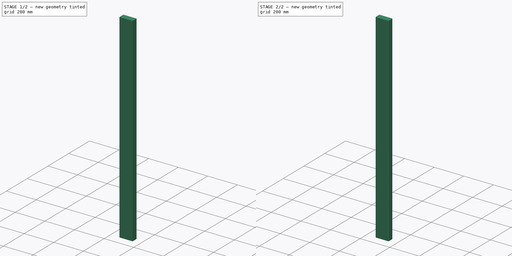
[diagram: build sequence overview — one tinted view per stage of 2, left to right]
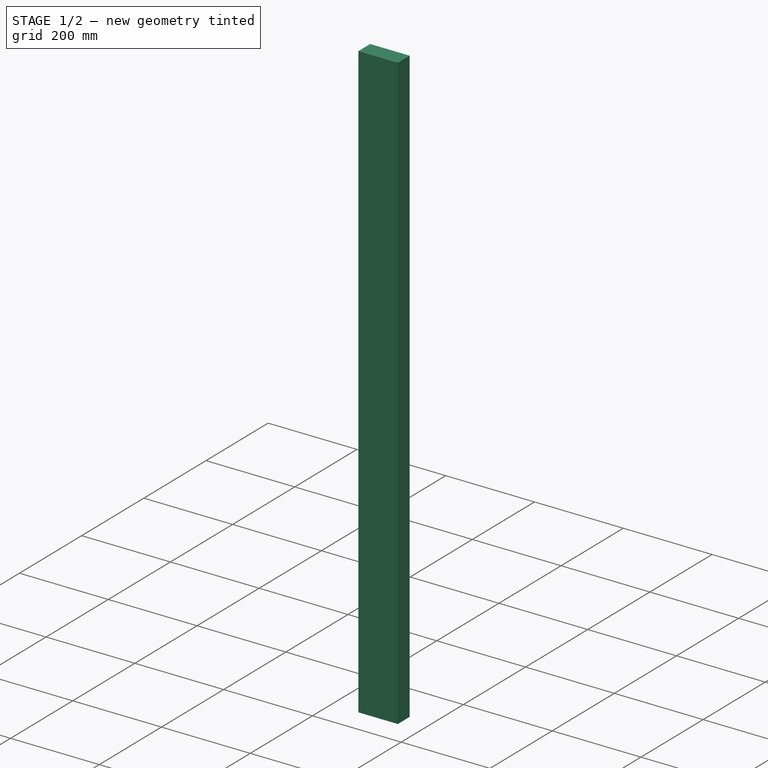
[diagram: stage 1 of 2 — iso view after this stage's code; geometry added in this stage tinted green]
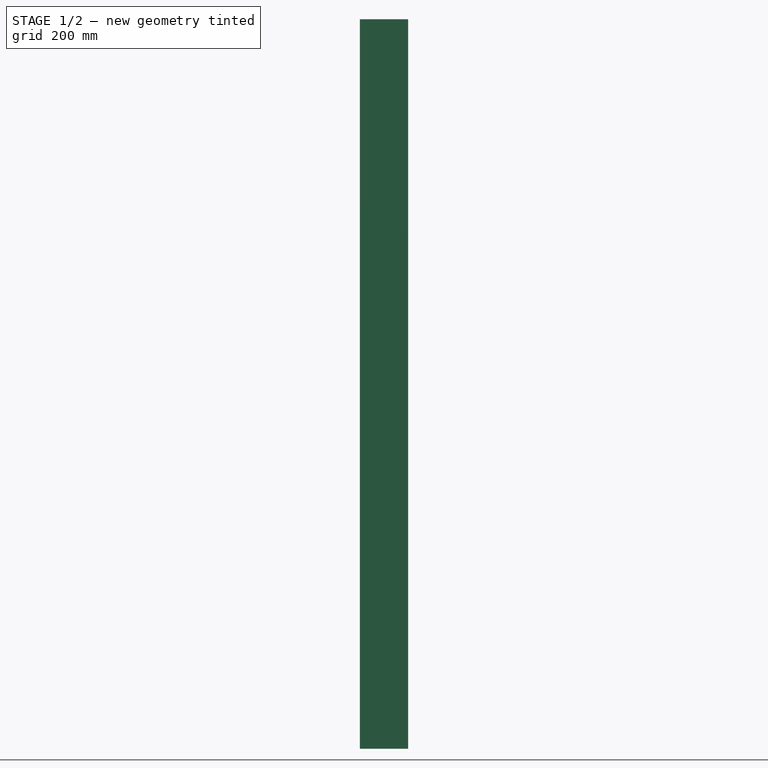
[diagram: stage 1 of 2 — front view after this stage's code; geometry added in this stage tinted green]
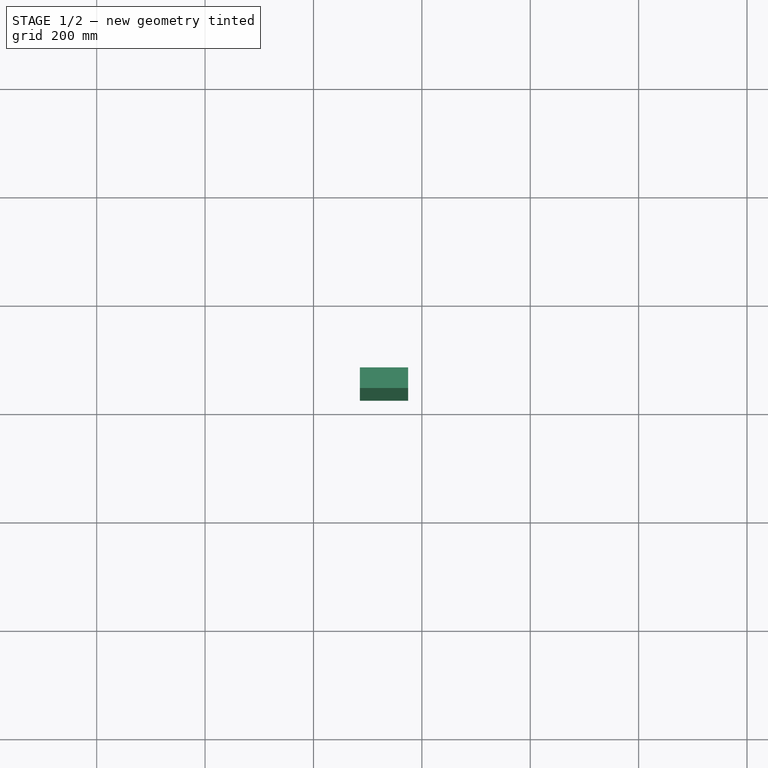
[diagram: stage 1 of 2 — top view after this stage's code; geometry added in this stage tinted green]
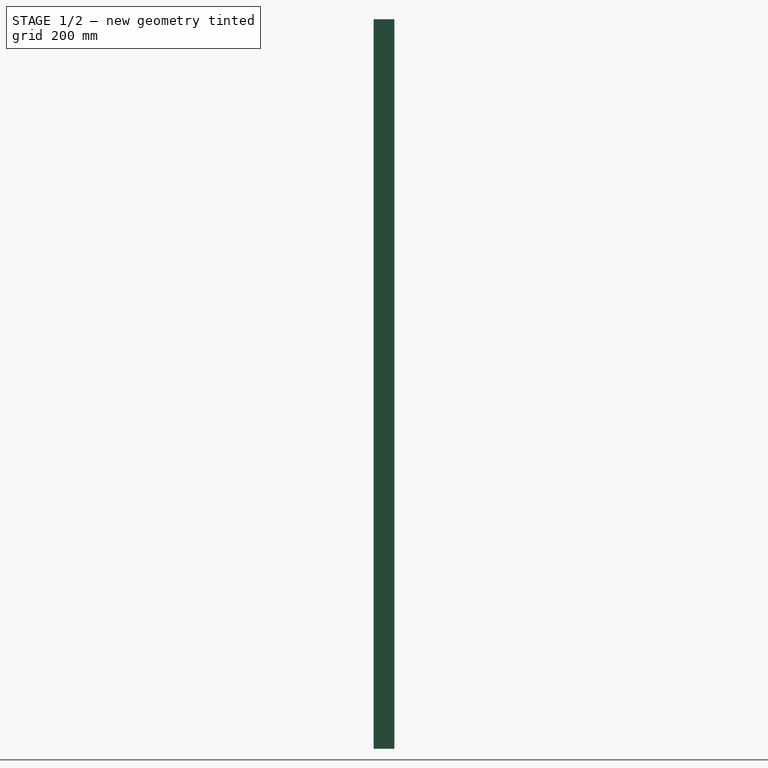
[diagram: stage 1 of 2 — right view after this stage's code; geometry added in this stage tinted green]
FCSTD DOCUMENT  (FreeCAD 0.17R13515 (Git))
Label: side board 2x4
License: All rights reserved
LicenseURL: http://en.wikipedia.org/wiki/All_rights_reserved
objects: Sketcher::SketchObject×1, PartDesign::Pad×1, Spreadsheet::Sheet×1, PartDesign::Fillet×1, PartDesign::Body×1
note: 5 computed .brp shape members not serialized (recipe doc carries the construction recipe); baked Part::Feature solids carry a one-line shape summary decoded from their .brp

FEATURE [Sketcher::SketchObject] Sketch
  MapMode = 5
  Support = -> [XY_Plane]
  expr: Constraints[8] = Spreadsheet.hi
  expr: Constraints[7] = Spreadsheet.w
  sketch-geometry (4):
    g0: LineSegment StartX=-114.3 StartY=63.5 StartZ=0 EndX=-25.4 EndY=63.5 EndZ=0
    g1: LineSegment StartX=-25.4 StartY=63.5 StartZ=0 EndX=-25.4 EndY=25.4 EndZ=0
    g2: LineSegment StartX=-25.4 StartY=25.4 StartZ=0 EndX=-114.3 EndY=25.4 EndZ=0
    g3: LineSegment StartX=-114.3 StartY=25.4 StartZ=0 EndX=-114.3 EndY=63.5 EndZ=0
  constraints (12):
    c: Coincident(g0,g1)
    c: Coincident(g2,g3)
    c: Coincident(g3,g0)
    c: Horizontal(g2)
    c: Vertical(g1)
    c: Vertical(g3)
    c: Horizontal(g0)
    c: DistanceX(g0,g0) = 88.9
    c: DistanceY(g3,g3) = 38.1
    c: Coincident(g2,g1)
    c: DistanceX(g1) = -25.4
    c: DistanceY(g1) = 25.4
FEATURE [PartDesign::Pad] Pad
  Length = 1346.2
  Length2 = 100
  Midplane = true
  Profile = -> Sketch
  Type = 0
  expr: Length = Spreadsheet.len
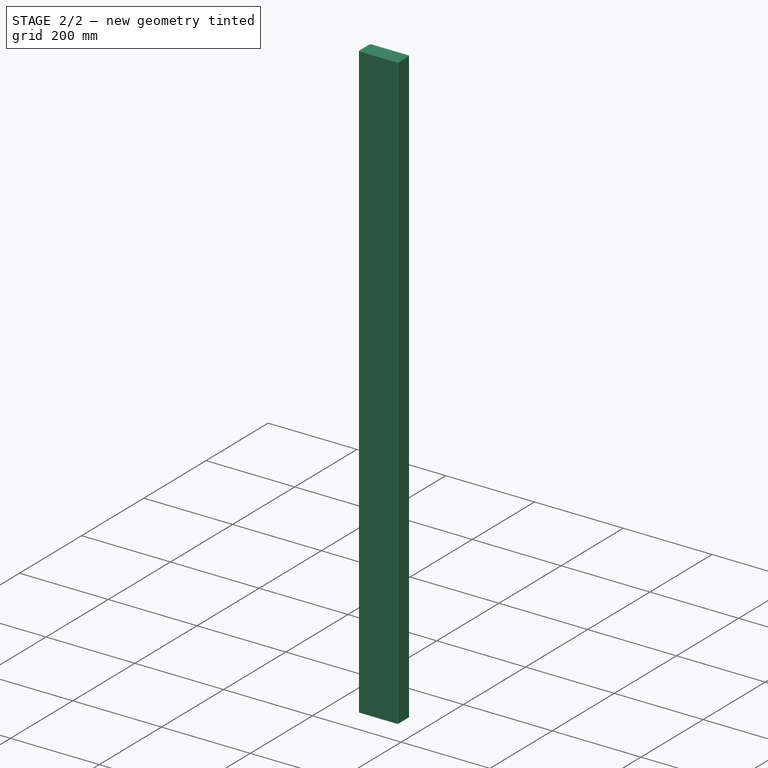
[diagram: stage 2 of 2 — iso view after this stage's code; geometry added in this stage tinted green]
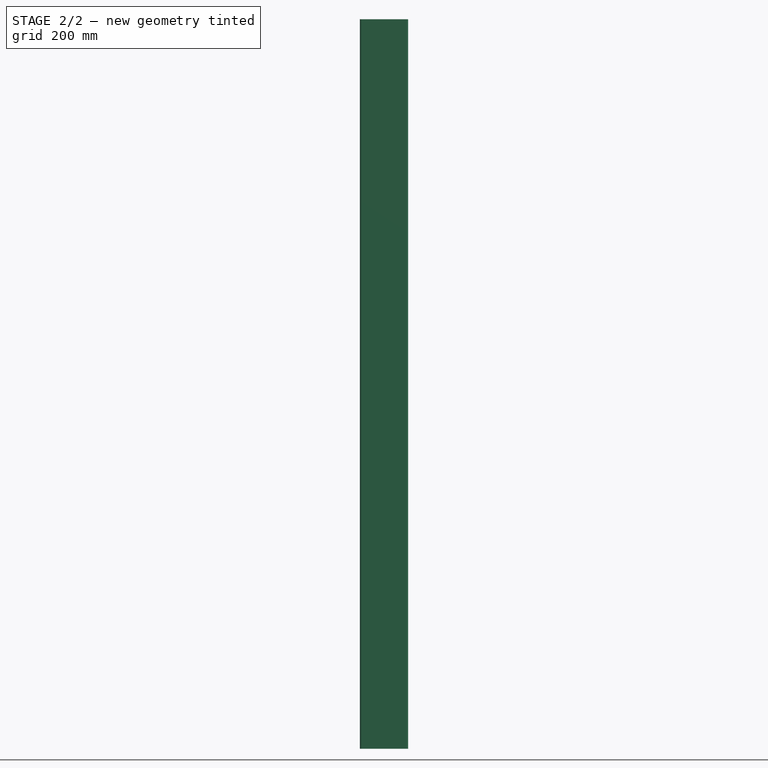
[diagram: stage 2 of 2 — front view after this stage's code; geometry added in this stage tinted green]
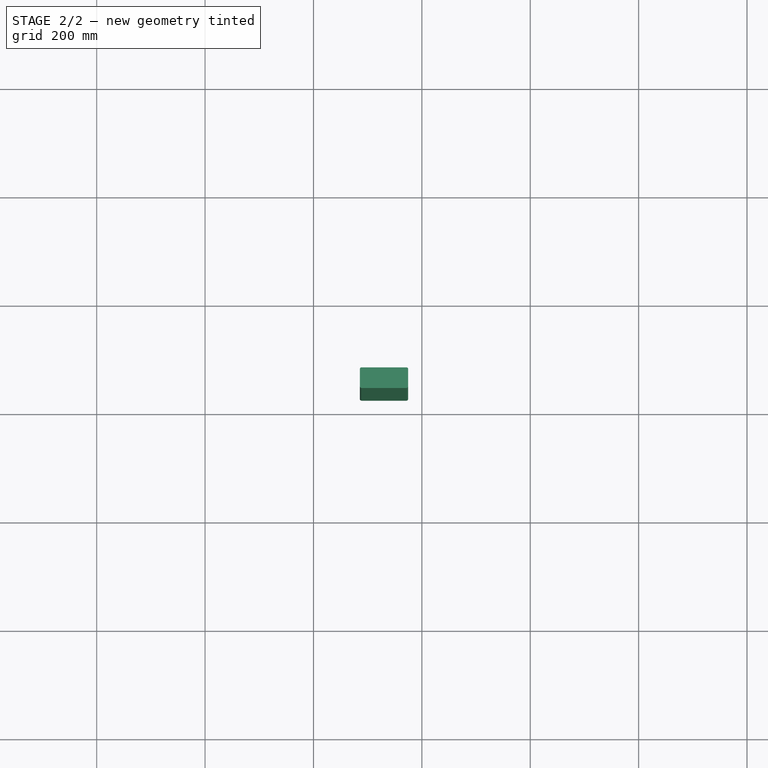
[diagram: stage 2 of 2 — top view after this stage's code; geometry added in this stage tinted green]
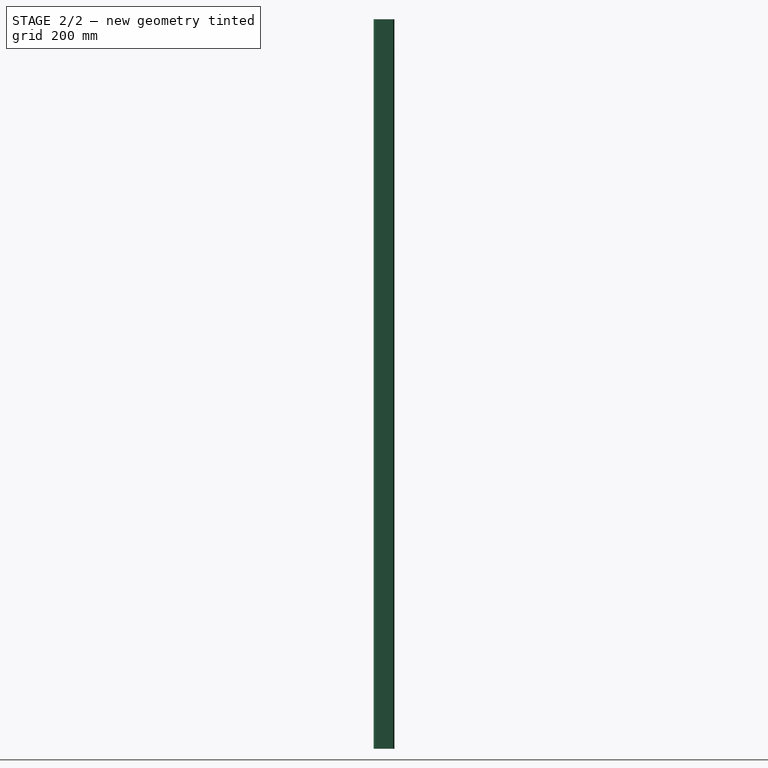
[diagram: stage 2 of 2 — right view after this stage's code; geometry added in this stage tinted green]
FEATURE [Spreadsheet::Sheet] Spreadsheet
  cells = A1=length; B1(len)==53in; A2=width; B2(w)==3.5in; A3=height; B3(hi)==1.5in
FEATURE [PartDesign::Fillet] Fillet
  Base = -> Pad [Edge2,Edge1,Edge5,Edge8]
  BaseFeature = -> Pad
  Radius = 3.048
FEATURE [PartDesign::Body] Body
  Group = -> [Sketch,Pad,Fillet]
  Origin = -> Origin
  Tip = -> Fillet
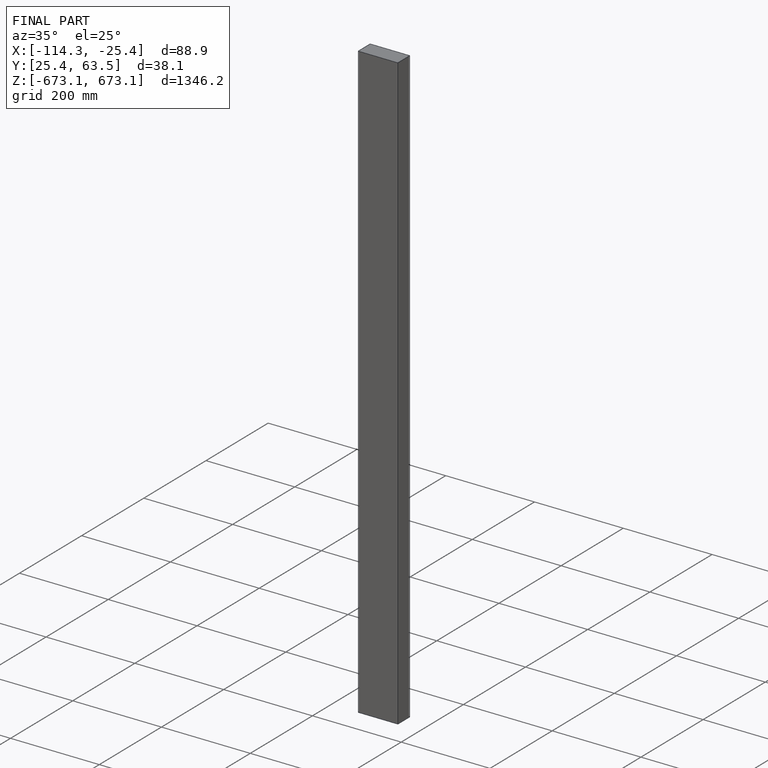
[diagram: finished part — iso view with bounding-box wireframe]
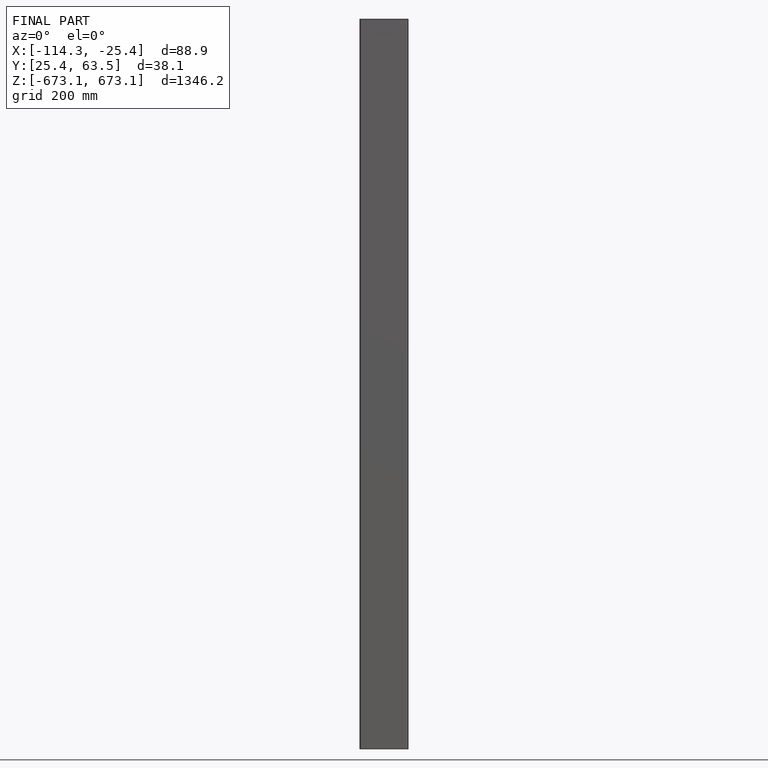
[diagram: finished part — front view with bounding-box wireframe]
